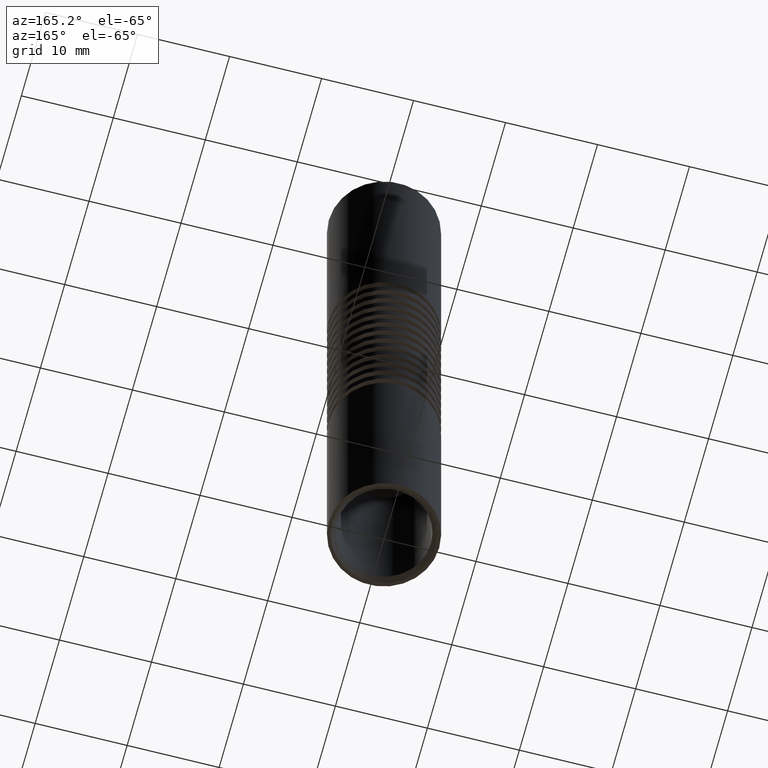
[diagram: clean part render]
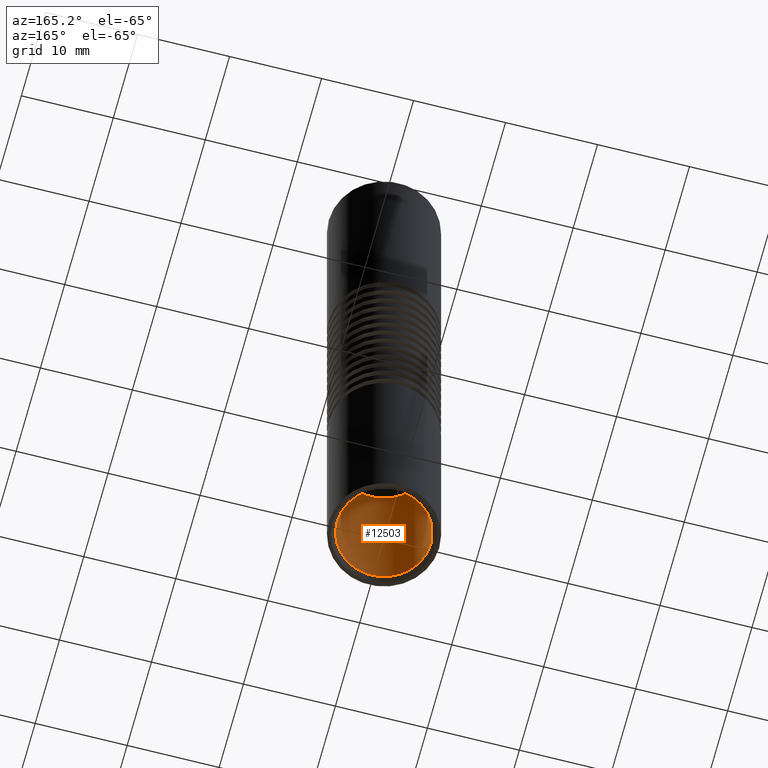
[diagram: same view with one face highlighted and labeled with its STEP entity id]
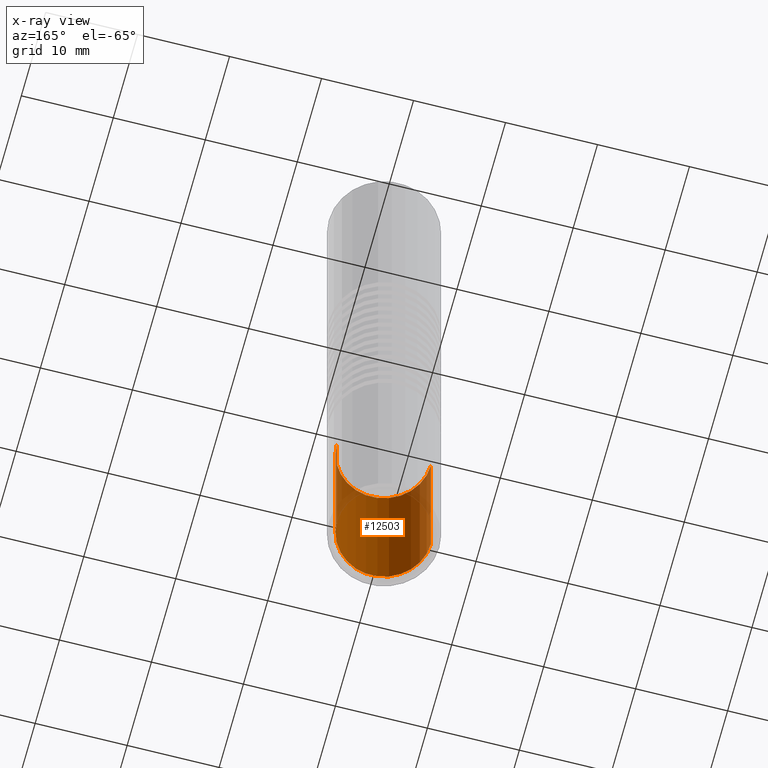
[diagram: x-ray of the same camera — body ghosted, the highlighted face saturated]
A machine part, auxiliary view. The second image highlights one B-rep face of the part: STEP entity #12503.
The next image is the same camera in x-ray: the body ghosted, the highlighted face saturated — about 13% of this face is hidden behind the body in this view.
In plain terms, the highlighted cylindrical surface (partial cylindrical patch) has radius 5.1 mm, axis along (0, 0, -1).
Its self-contained STEP definition (entity closure, byte-faithful):
#236 = VECTOR ( 'NONE', #4718, 1000.000000000000000 ) ;
#870 = CARTESIAN_POINT ( 'NONE',  ( 5.099999999999995204, 0.000000000000000000, -36.99999999999998579 ) ) ;
#1179 = CARTESIAN_POINT ( 'NONE',  ( -5.099999999999994316, -6.245698675651494922E-16, -17.49999999999999645 ) ) ;
#2114 = CARTESIAN_POINT ( 'NONE',  ( 5.099999999999995204, 0.000000000000000000, -37.50000000000000000 ) ) ;
#2302 = DIRECTION ( 'NONE',  ( -0.000000000000000000, -0.000000000000000000, 1.000000000000000000 ) ) ;
#2435 = VERTEX_POINT ( 'NONE', #870 ) ;
#2448 = DIRECTION ( 'NONE',  ( 1.000000000000000000, 0.000000000000000000, 0.000000000000000000 ) ) ;
#2495 = VERTEX_POINT ( 'NONE', #12620 ) ;
#3157 = DIRECTION ( 'NONE',  ( -0.000000000000000000, -0.000000000000000000, -1.000000000000000000 ) ) ;
#3993 = EDGE_LOOP ( 'NONE', ( #6007, #6307, #12298, #12867 ) ) ;
#3998 = VERTEX_POINT ( 'NONE', #5959 ) ;
#4208 = EDGE_CURVE ( 'NONE', #2495, #2435, #7494, .T. ) ;
#4718 = DIRECTION ( 'NONE',  ( 0.000000000000000000, 0.000000000000000000, -1.000000000000000000 ) ) ;
#4936 = FACE_OUTER_BOUND ( 'NONE', #3993, .T. ) ;
#5388 = DIRECTION ( 'NONE',  ( 1.000000000000000000, 0.000000000000000000, 0.000000000000000000 ) ) ;
#5403 = DIRECTION ( 'NONE',  ( 1.000000000000000000, 0.000000000000000000, 0.000000000000000000 ) ) ;
#5551 = DIRECTION ( 'NONE',  ( 0.000000000000000000, 0.000000000000000000, -1.000000000000000000 ) ) ;
#5781 = CARTESIAN_POINT ( 'NONE',  ( -5.099999999999995204, -6.245698675651495909E-16, -37.50000000000000000 ) ) ;
#5959 = CARTESIAN_POINT ( 'NONE',  ( -5.099999999999995204, -6.245698675651495909E-16, -36.99999999999998579 ) ) ;
#6007 = ORIENTED_EDGE ( 'NONE', *, *, #6681, .F. ) ;
#6307 = ORIENTED_EDGE ( 'NONE', *, *, #8513, .T. ) ;
#6485 = VERTEX_POINT ( 'NONE', #1179 ) ;
#6509 = CARTESIAN_POINT ( 'NONE',  ( 0.000000000000000000, 0.000000000000000000, -17.49999999999999645 ) ) ;
#6621 = CIRCLE ( 'NONE', #9682, 5.099999999999995204 ) ;
#6661 = CARTESIAN_POINT ( 'NONE',  ( 0.000000000000000000, 0.000000000000000000, -37.50000000000000000 ) ) ;
#6681 = EDGE_CURVE ( 'NONE', #6485, #3998, #8738, .T. ) ;
#6799 = AXIS2_PLACEMENT_3D ( 'NONE', #6509, #2302, #5403 ) ;
#7494 = LINE ( 'NONE', #2114, #11251 ) ;
#8513 = EDGE_CURVE ( 'NONE', #6485, #2495, #10849, .T. ) ;
#8536 = CYLINDRICAL_SURFACE ( 'NONE', #12680, 5.099999999999995204 ) ;
#8738 = LINE ( 'NONE', #5781, #236 ) ;
#8871 = EDGE_CURVE ( 'NONE', #2435, #3998, #6621, .T. ) ;
#9389 = CARTESIAN_POINT ( 'NONE',  ( 0.000000000000000000, 0.000000000000000000, -36.99999999999998579 ) ) ;
#9682 = AXIS2_PLACEMENT_3D ( 'NONE', #9389, #3157, #5388 ) ;
#10849 = CIRCLE ( 'NONE', #6799, 5.099999999999994316 ) ;
#11251 = VECTOR ( 'NONE', #11588, 1000.000000000000000 ) ;
#11588 = DIRECTION ( 'NONE',  ( 0.000000000000000000, 0.000000000000000000, -1.000000000000000000 ) ) ;
#12298 = ORIENTED_EDGE ( 'NONE', *, *, #4208, .T. ) ;
#12503 = ADVANCED_FACE ( 'NONE', ( #4936 ), #8536, .F. ) ;
#12620 = CARTESIAN_POINT ( 'NONE',  ( 5.099999999999994316, 0.000000000000000000, -17.49999999999999645 ) ) ;
#12680 = AXIS2_PLACEMENT_3D ( 'NONE', #6661, #5551, #2448 ) ;
#12867 = ORIENTED_EDGE ( 'NONE', *, *, #8871, .T. ) ;